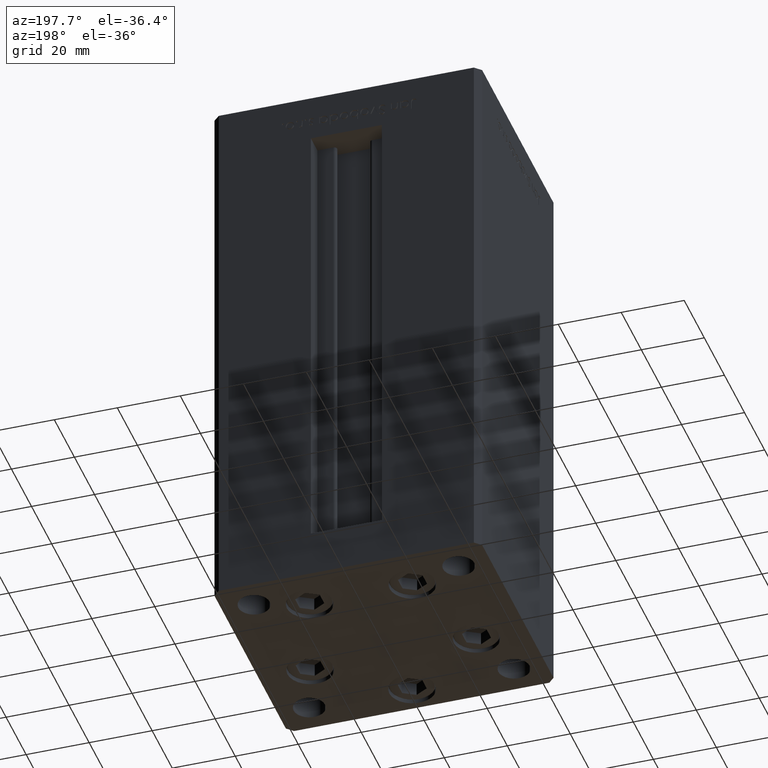
[diagram: clean part render]
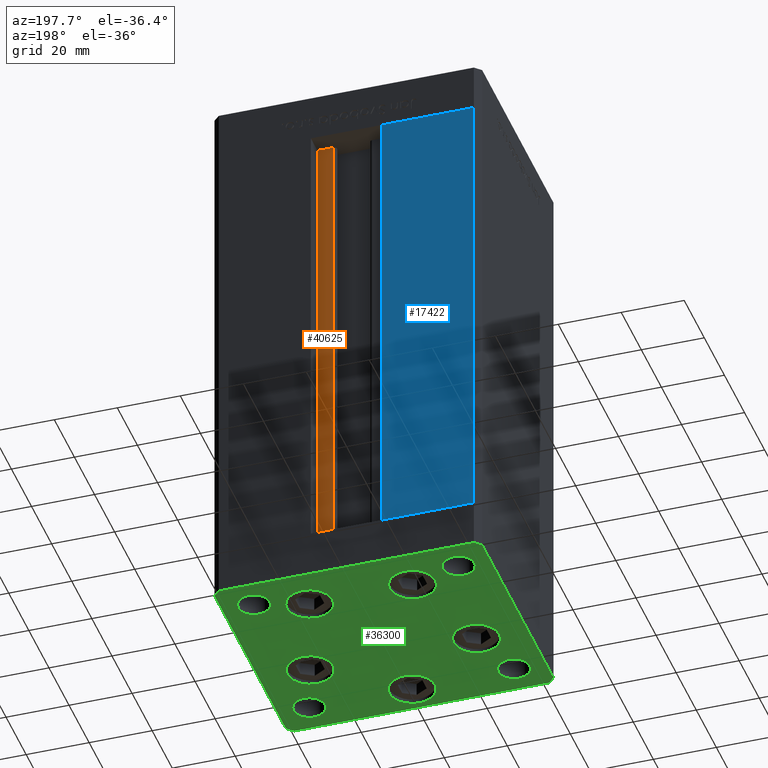
[diagram: same view with three faces highlighted in distinct colors, each labeled with its STEP entity id]
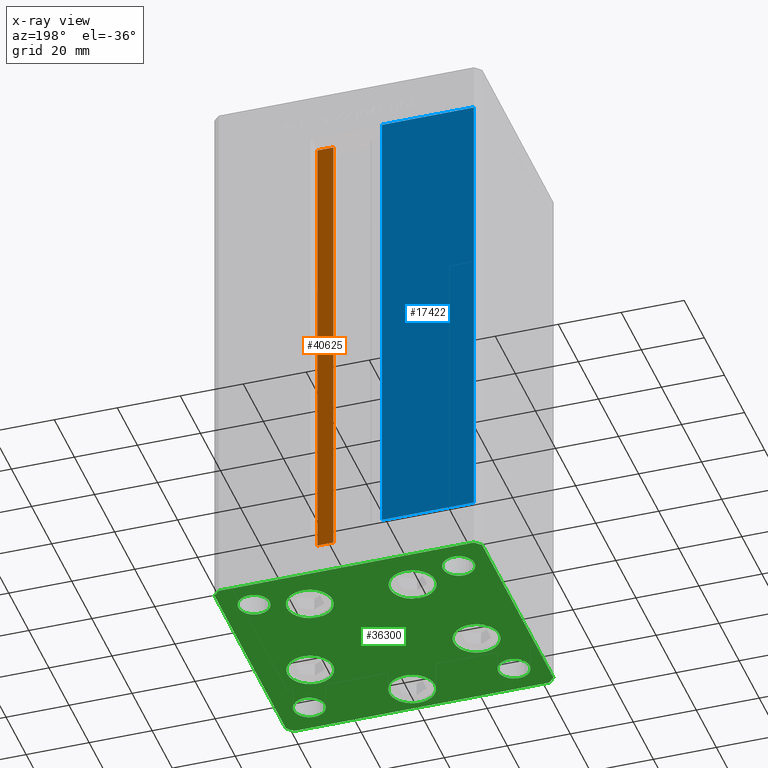
[diagram: x-ray of the same camera — body ghosted, the three highlighted faces saturated]
A machine part, auxiliary view with three faces highlighted in distinct colors.
The next image is the same camera in x-ray (body ghosted, the three faces saturated) — at least one of them is partly hidden behind the body in this view.
Their STEP definitions:

[orange] entity #40625 — the highlighted planar face has unit normal (0, -1, 0).
#2623 = ORIENTED_EDGE ( 'NONE', *, *, #27236, .F. ) ;
#5508 = EDGE_CURVE ( 'NONE', #46828, #31269, #29381, .T. ) ;
#7000 = DIRECTION ( 'NONE',  ( 0.000000000000000000, -0.000000000000000000, -1.000000000000000000 ) ) ;
#8990 = DIRECTION ( 'NONE',  ( -0.000000000000000000, -0.000000000000000000, 1.000000000000000000 ) ) ;
#9032 = DIRECTION ( 'NONE',  ( 1.000000000000000000, 0.000000000000000000, 0.000000000000000000 ) ) ;
#9565 = DIRECTION ( 'NONE',  ( -1.000000000000000000, 0.000000000000000000, 0.000000000000000000 ) ) ;
#9768 = LINE ( 'NONE', #33277, #23782 ) ;
#11499 = FACE_OUTER_BOUND ( 'NONE', #14965, .T. ) ;
#13757 = CARTESIAN_POINT ( 'NONE',  ( 11.25000000000000000, 30.99999999999999289, 148.5000000000000000 ) ) ;
#14965 = EDGE_LOOP ( 'NONE', ( #31788, #2623, #34641, #35741 ) ) ;
#23782 = VECTOR ( 'NONE', #8990, 1000.000000000000000 ) ;
#25157 = LINE ( 'NONE', #28849, #29156 ) ;
#25248 = VECTOR ( 'NONE', #9565, 1000.000000000000000 ) ;
#25430 = CARTESIAN_POINT ( 'NONE',  ( 0.000000000000000000, 30.99999999999999289, 148.5000000000000000 ) ) ;
#27236 = EDGE_CURVE ( 'NONE', #36252, #40249, #25157, .T. ) ;
#27869 = PLANE ( 'NONE',  #42917 ) ;
#28849 = CARTESIAN_POINT ( 'NONE',  ( 6.183333333333999704, 30.99999999999999289, 0.000000000000000000 ) ) ;
#28884 = CARTESIAN_POINT ( 'NONE',  ( 6.183333333333999704, 30.99999999999999289, 0.000000000000000000 ) ) ;
#29156 = VECTOR ( 'NONE', #9032, 1000.000000000000000 ) ;
#29381 = LINE ( 'NONE', #25430, #25248 ) ;
#31269 = VERTEX_POINT ( 'NONE', #32108 ) ;
#31788 = ORIENTED_EDGE ( 'NONE', *, *, #45503, .F. ) ;
#32108 = CARTESIAN_POINT ( 'NONE',  ( 6.183333333333999704, 30.99999999999999289, 148.5000000000000000 ) ) ;
#33277 = CARTESIAN_POINT ( 'NONE',  ( 6.183333333333999704, 30.99999999999999289, 0.000000000000000000 ) ) ;
#34641 = ORIENTED_EDGE ( 'NONE', *, *, #48363, .T. ) ;
#35741 = ORIENTED_EDGE ( 'NONE', *, *, #5508, .F. ) ;
#36252 = VERTEX_POINT ( 'NONE', #28884 ) ;
#37196 = VECTOR ( 'NONE', #39592, 1000.000000000000000 ) ;
#37984 = CARTESIAN_POINT ( 'NONE',  ( 11.25000000000000000, 30.99999999999999289, 0.000000000000000000 ) ) ;
#39592 = DIRECTION ( 'NONE',  ( -0.000000000000000000, -0.000000000000000000, 1.000000000000000000 ) ) ;
#40249 = VERTEX_POINT ( 'NONE', #37984 ) ;
#40625 = ADVANCED_FACE ( 'NONE', ( #11499 ), #27869, .F. ) ;
#42917 = AXIS2_PLACEMENT_3D ( 'NONE', #47905, #43695, #7000 ) ;
#43695 = DIRECTION ( 'NONE',  ( 0.000000000000000000, -1.000000000000000000, 0.000000000000000000 ) ) ;
#44062 = LINE ( 'NONE', #47762, #37196 ) ;
#45503 = EDGE_CURVE ( 'NONE', #40249, #46828, #44062, .T. ) ;
#46828 = VERTEX_POINT ( 'NONE', #13757 ) ;
#47762 = CARTESIAN_POINT ( 'NONE',  ( 11.25000000000000000, 30.99999999999999289, 0.000000000000000000 ) ) ;
#47905 = CARTESIAN_POINT ( 'NONE',  ( 6.183333333333999704, 30.99999999999999289, 0.000000000000000000 ) ) ;
#48363 = EDGE_CURVE ( 'NONE', #36252, #31269, #9768, .T. ) ;

[blue] entity #17422 — the highlighted planar face has unit normal (-0, -1, 0).
#4486 = EDGE_CURVE ( 'NONE', #41974, #15911, #7439, .T. ) ;
#6144 = AXIS2_PLACEMENT_3D ( 'NONE', #17707, #50149, #10036 ) ;
#7439 = LINE ( 'NONE', #36220, #41198 ) ;
#8109 = EDGE_CURVE ( 'NONE', #8798, #30941, #18985, .T. ) ;
#8798 = VERTEX_POINT ( 'NONE', #21537 ) ;
#10036 = DIRECTION ( 'NONE',  ( 1.000000000000000000, -2.372271420139223331E-16, 0.000000000000000000 ) ) ;
#11361 = ORIENTED_EDGE ( 'NONE', *, *, #8109, .F. ) ;
#15240 = LINE ( 'NONE', #19197, #20348 ) ;
#15550 = CARTESIAN_POINT ( 'NONE',  ( -40.50000000000000000, 37.50000000000000711, 0.000000000000000000 ) ) ;
#15911 = VERTEX_POINT ( 'NONE', #33137 ) ;
#17422 = ADVANCED_FACE ( 'NONE', ( #34318 ), #49894, .F. ) ;
#17707 = CARTESIAN_POINT ( 'NONE',  ( -11.25000000000000000, 37.50000000000000000, 148.5000000000000000 ) ) ;
#18985 = LINE ( 'NONE', #31393, #31104 ) ;
#19197 = CARTESIAN_POINT ( 'NONE',  ( -11.25000000000000000, 37.50000000000000000, 148.5000000000000000 ) ) ;
#20348 = VECTOR ( 'NONE', #23168, 1000.000000000000000 ) ;
#21537 = CARTESIAN_POINT ( 'NONE',  ( -40.50000000000000000, 37.50000000000000711, 148.5000000000000000 ) ) ;
#21712 = EDGE_LOOP ( 'NONE', ( #40326, #49367, #45273, #11361 ) ) ;
#23168 = DIRECTION ( 'NONE',  ( 1.000000000000000000, 0.000000000000000000, 0.000000000000000000 ) ) ;
#30316 = VECTOR ( 'NONE', #50832, 1000.000000000000000 ) ;
#30394 = CARTESIAN_POINT ( 'NONE',  ( -11.25000000000000000, 37.50000000000000000, 0.000000000000000000 ) ) ;
#30941 = VERTEX_POINT ( 'NONE', #15550 ) ;
#31104 = VECTOR ( 'NONE', #47990, 1000.000000000000000 ) ;
#31393 = CARTESIAN_POINT ( 'NONE',  ( -40.50000000000000000, 37.50000000000000711, 148.5000000000000000 ) ) ;
#33137 = CARTESIAN_POINT ( 'NONE',  ( -11.25000000000000000, 37.50000000000000000, 148.5000000000000000 ) ) ;
#34318 = FACE_OUTER_BOUND ( 'NONE', #21712, .T. ) ;
#36220 = CARTESIAN_POINT ( 'NONE',  ( -11.25000000000000000, 37.50000000000000000, 0.000000000000000000 ) ) ;
#37933 = CARTESIAN_POINT ( 'NONE',  ( -11.25000000000000000, 37.50000000000000000, 0.000000000000000000 ) ) ;
#39654 = DIRECTION ( 'NONE',  ( -0.000000000000000000, -0.000000000000000000, 1.000000000000000000 ) ) ;
#40326 = ORIENTED_EDGE ( 'NONE', *, *, #47825, .T. ) ;
#41198 = VECTOR ( 'NONE', #39654, 1000.000000000000000 ) ;
#41460 = EDGE_CURVE ( 'NONE', #41974, #30941, #42388, .T. ) ;
#41974 = VERTEX_POINT ( 'NONE', #30394 ) ;
#42388 = LINE ( 'NONE', #37933, #30316 ) ;
#45273 = ORIENTED_EDGE ( 'NONE', *, *, #41460, .T. ) ;
#47825 = EDGE_CURVE ( 'NONE', #8798, #15911, #15240, .T. ) ;
#47990 = DIRECTION ( 'NONE',  ( -0.000000000000000000, -0.000000000000000000, -1.000000000000000000 ) ) ;
#49367 = ORIENTED_EDGE ( 'NONE', *, *, #4486, .F. ) ;
#49894 = PLANE ( 'NONE',  #6144 ) ;
#50149 = DIRECTION ( 'NONE',  ( -2.372271420139223331E-16, -1.000000000000000000, 0.000000000000000000 ) ) ;
#50832 = DIRECTION ( 'NONE',  ( -1.000000000000000000, 2.372271420139223331E-16, 0.000000000000000000 ) ) ;

[green] entity #36300 — the highlighted planar face has unit normal (0, 0, -1).
#449 = CIRCLE ( 'NONE', #18176, 7.249999999999999112 ) ;
#613 = FACE_OUTER_BOUND ( 'NONE', #51688, .T. ) ;
#836 = ORIENTED_EDGE ( 'NONE', *, *, #42911, .T. ) ;
#1201 = DIRECTION ( 'NONE',  ( 1.000000000000000000, 0.000000000000000000, 0.000000000000000000 ) ) ;
#1615 = AXIS2_PLACEMENT_3D ( 'NONE', #39443, #15686, #27574 ) ;
#2293 = DIRECTION ( 'NONE',  ( 1.000000000000000000, 0.000000000000000000, 0.000000000000000000 ) ) ;
#2444 = DIRECTION ( 'NONE',  ( 0.7071067811865463515, -0.7071067811865487940, 0.000000000000000000 ) ) ;
#3268 = ORIENTED_EDGE ( 'NONE', *, *, #40586, .T. ) ;
#3341 = DIRECTION ( 'NONE',  ( 1.000000000000000000, 0.000000000000000000, 0.000000000000000000 ) ) ;
#3418 = AXIS2_PLACEMENT_3D ( 'NONE', #36980, #33521, #21663 ) ;
#3665 = DIRECTION ( 'NONE',  ( -0.7071067811865474617, 0.7071067811865474617, 0.000000000000000000 ) ) ;
#3819 = EDGE_CURVE ( 'NONE', #44669, #13979, #5745, .T. ) ;
#3871 = CARTESIAN_POINT ( 'NONE',  ( 40.49999999999991473, 37.50000000000000711, 0.000000000000000000 ) ) ;
#4286 = CARTESIAN_POINT ( 'NONE',  ( 42.49999999999992895, 35.50000000000000000, 0.000000000000000000 ) ) ;
#4310 = FACE_BOUND ( 'NONE', #31247, .T. ) ;
#4565 = FACE_BOUND ( 'NONE', #10960, .T. ) ;
#4666 = DIRECTION ( 'NONE',  ( 1.000000000000000000, 0.000000000000000000, 0.000000000000000000 ) ) ;
#4901 = DIRECTION ( 'NONE',  ( 0.000000000000000000, -0.000000000000000000, -1.000000000000000000 ) ) ;
#4918 = EDGE_CURVE ( 'NONE', #9167, #33920, #12557, .T. ) ;
#5281 = EDGE_CURVE ( 'NONE', #21970, #13845, #22723, .T. ) ;
#5345 = FACE_BOUND ( 'NONE', #51191, .T. ) ;
#5487 = ORIENTED_EDGE ( 'NONE', *, *, #4918, .T. ) ;
#5563 = CIRCLE ( 'NONE', #35104, 5.000000000000000888 ) ;
#5590 = VERTEX_POINT ( 'NONE', #16386 ) ;
#5745 = CIRCLE ( 'NONE', #44543, 5.000000000000000888 ) ;
#5751 = DIRECTION ( 'NONE',  ( -0.7071067811865463515, -0.7071067811865487940, 0.000000000000000000 ) ) ;
#6245 = VECTOR ( 'NONE', #5751, 1000.000000000000000 ) ;
#6512 = DIRECTION ( 'NONE',  ( 1.000000000000000000, 0.000000000000000000, 0.000000000000000000 ) ) ;
#6550 = CARTESIAN_POINT ( 'NONE',  ( -16.32291334290543006, 22.74999999999999645, 0.000000000000000000 ) ) ;
#7083 = EDGE_CURVE ( 'NONE', #22429, #35690, #24449, .T. ) ;
#7744 = LINE ( 'NONE', #40467, #44253 ) ;
#8026 = EDGE_LOOP ( 'NONE', ( #36902, #23303 ) ) ;
#8264 = CARTESIAN_POINT ( 'NONE',  ( 33.64865316429776954, -9.333333333333328596, 0.000000000000000000 ) ) ;
#8552 = FACE_BOUND ( 'NONE', #34756, .T. ) ;
#8773 = VERTEX_POINT ( 'NONE', #17304 ) ;
#8807 = FACE_BOUND ( 'NONE', #16887, .T. ) ;
#9167 = VERTEX_POINT ( 'NONE', #20300 ) ;
#9221 = CARTESIAN_POINT ( 'NONE',  ( -27.50000000000000000, -27.49999999999999645, 0.000000000000000000 ) ) ;
#10184 = VERTEX_POINT ( 'NONE', #46194 ) ;
#10188 = CIRCLE ( 'NONE', #30437, 5.000000000000000888 ) ;
#10384 = AXIS2_PLACEMENT_3D ( 'NONE', #33422, #4901, #1201 ) ;
#10960 = EDGE_LOOP ( 'NONE', ( #41430, #48917 ) ) ;
#10979 = VECTOR ( 'NONE', #3665, 1000.000000000000114 ) ;
#10996 = CIRCLE ( 'NONE', #46394, 4.999999999999997335 ) ;
#11414 = DIRECTION ( 'NONE',  ( 0.000000000000000000, -0.000000000000000000, -1.000000000000000000 ) ) ;
#12180 = EDGE_CURVE ( 'NONE', #13470, #5590, #28238, .T. ) ;
#12247 = FACE_BOUND ( 'NONE', #51041, .T. ) ;
#12557 = CIRCLE ( 'NONE', #24372, 7.250000000000000000 ) ;
#12875 = VERTEX_POINT ( 'NONE', #19553 ) ;
#12931 = CARTESIAN_POINT ( 'NONE',  ( 9.072913342905424727, 22.75000000000000000, 0.000000000000000000 ) ) ;
#13281 = VERTEX_POINT ( 'NONE', #51570 ) ;
#13470 = VERTEX_POINT ( 'NONE', #4286 ) ;
#13693 = DIRECTION ( 'NONE',  ( 1.000000000000000000, 0.000000000000000000, 0.000000000000000000 ) ) ;
#13721 = CARTESIAN_POINT ( 'NONE',  ( -27.50000000000000000, 27.50000000000000355, 0.000000000000000000 ) ) ;
#13812 = EDGE_CURVE ( 'NONE', #38535, #25671, #27871, .T. ) ;
#13845 = VERTEX_POINT ( 'NONE', #24845 ) ;
#13852 = EDGE_LOOP ( 'NONE', ( #31513, #47741 ) ) ;
#13941 = DIRECTION ( 'NONE',  ( 1.000000000000000000, 0.000000000000000000, 0.000000000000000000 ) ) ;
#13979 = VERTEX_POINT ( 'NONE', #39828 ) ;
#13999 = EDGE_CURVE ( 'NONE', #33450, #39954, #33767, .T. ) ;
#14198 = DIRECTION ( 'NONE',  ( -0.000000000000000000, 0.000000000000000000, 1.000000000000000000 ) ) ;
#14235 = DIRECTION ( 'NONE',  ( 0.000000000000000000, -0.000000000000000000, -1.000000000000000000 ) ) ;
#14499 = CARTESIAN_POINT ( 'NONE',  ( 3.429011037612589276E-15, -28.00000000000000000, 0.000000000000000000 ) ) ;
#14722 = DIRECTION ( 'NONE',  ( 0.000000000000000000, -0.000000000000000000, -1.000000000000000000 ) ) ;
#14786 = CARTESIAN_POINT ( 'NONE',  ( -40.50000000000000711, 37.49999999999997868, 0.000000000000000000 ) ) ;
#14832 = EDGE_CURVE ( 'NONE', #34946, #8773, #25386, .T. ) ;
#15192 = VECTOR ( 'NONE', #39038, 1000.000000000000000 ) ;
#15449 = CIRCLE ( 'NONE', #10384, 7.249999999999999112 ) ;
#15686 = DIRECTION ( 'NONE',  ( 0.000000000000000000, -0.000000000000000000, -1.000000000000000000 ) ) ;
#15786 = DIRECTION ( 'NONE',  ( -1.000000000000000000, -3.426614273534436165E-16, 0.000000000000000000 ) ) ;
#15817 = DIRECTION ( 'NONE',  ( 1.000000000000000000, 0.000000000000000000, 0.000000000000000000 ) ) ;
#16075 = CARTESIAN_POINT ( 'NONE',  ( 27.50000000000000355, -27.49999999999999645, 0.000000000000000000 ) ) ;
#16208 = DIRECTION ( 'NONE',  ( 0.000000000000000000, -0.000000000000000000, -1.000000000000000000 ) ) ;
#16386 = CARTESIAN_POINT ( 'NONE',  ( 40.49999999999991473, 37.50000000000000711, 0.000000000000000000 ) ) ;
#16437 = EDGE_CURVE ( 'NONE', #12875, #30737, #24694, .T. ) ;
#16725 = CARTESIAN_POINT ( 'NONE',  ( 0.000000000000000000, 0.000000000000000000, 0.000000000000000000 ) ) ;
#16887 = EDGE_LOOP ( 'NONE', ( #34353, #28283 ) ) ;
#17304 = CARTESIAN_POINT ( 'NONE',  ( -23.57291334290543006, 22.74999999999999645, 0.000000000000000000 ) ) ;
#17564 = VERTEX_POINT ( 'NONE', #14786 ) ;
#17658 = CARTESIAN_POINT ( 'NONE',  ( 32.50000000000000000, 27.49999999999999645, 0.000000000000000000 ) ) ;
#17732 = CARTESIAN_POINT ( 'NONE',  ( 16.32291334290542295, 22.75000000000000000, 0.000000000000000000 ) ) ;
#17740 = ORIENTED_EDGE ( 'NONE', *, *, #26433, .T. ) ;
#17756 = EDGE_CURVE ( 'NONE', #13845, #21970, #15449, .T. ) ;
#18067 = AXIS2_PLACEMENT_3D ( 'NONE', #17732, #46741, #33570 ) ;
#18176 = AXIS2_PLACEMENT_3D ( 'NONE', #40265, #20220, #43972 ) ;
#18457 = ORIENTED_EDGE ( 'NONE', *, *, #19290, .T. ) ;
#19107 = ORIENTED_EDGE ( 'NONE', *, *, #44889, .T. ) ;
#19290 = EDGE_CURVE ( 'NONE', #22625, #13281, #50494, .T. ) ;
#19553 = CARTESIAN_POINT ( 'NONE',  ( 37.50000000000000000, 27.49999999999999645, 0.000000000000000000 ) ) ;
#20106 = DIRECTION ( 'NONE',  ( 0.000000000000000000, -0.000000000000000000, -1.000000000000000000 ) ) ;
#20220 = DIRECTION ( 'NONE',  ( 0.000000000000000000, -0.000000000000000000, -1.000000000000000000 ) ) ;
#20300 = CARTESIAN_POINT ( 'NONE',  ( -7.249999999999997335, -28.00000000000000000, 0.000000000000000000 ) ) ;
#20452 = FACE_BOUND ( 'NONE', #32027, .T. ) ;
#21497 = PLANE ( 'NONE',  #40235 ) ;
#21498 = VERTEX_POINT ( 'NONE', #32222 ) ;
#21641 = LINE ( 'NONE', #34544, #6245 ) ;
#21663 = DIRECTION ( 'NONE',  ( 1.000000000000000000, 0.000000000000000000, 0.000000000000000000 ) ) ;
#21822 = LINE ( 'NONE', #50824, #26919 ) ;
#21970 = VERTEX_POINT ( 'NONE', #8264 ) ;
#22415 = AXIS2_PLACEMENT_3D ( 'NONE', #45330, #37430, #4666 ) ;
#22429 = VERTEX_POINT ( 'NONE', #16075 ) ;
#22546 = CARTESIAN_POINT ( 'NONE',  ( -42.50000000000000000, -35.50000000000000711, 0.000000000000000000 ) ) ;
#22625 = VERTEX_POINT ( 'NONE', #26342 ) ;
#22694 = DIRECTION ( 'NONE',  ( 0.000000000000000000, -0.000000000000000000, -1.000000000000000000 ) ) ;
#22723 = CIRCLE ( 'NONE', #1615, 7.249999999999999112 ) ;
#22831 = ORIENTED_EDGE ( 'NONE', *, *, #51228, .T. ) ;
#22887 = LINE ( 'NONE', #42925, #52130 ) ;
#23303 = ORIENTED_EDGE ( 'NONE', *, *, #13812, .T. ) ;
#23816 = DIRECTION ( 'NONE',  ( 1.000000000000000000, 0.000000000000000000, 0.000000000000000000 ) ) ;
#23883 = CARTESIAN_POINT ( 'NONE',  ( 32.50000000000000000, -27.49999999999999645, 0.000000000000000000 ) ) ;
#24311 = ORIENTED_EDGE ( 'NONE', *, *, #30983, .T. ) ;
#24372 = AXIS2_PLACEMENT_3D ( 'NONE', #14499, #14235, #31394 ) ;
#24417 = ORIENTED_EDGE ( 'NONE', *, *, #49346, .T. ) ;
#24449 = CIRCLE ( 'NONE', #39620, 4.999999999999997335 ) ;
#24694 = CIRCLE ( 'NONE', #49940, 4.999999999999997335 ) ;
#24845 = CARTESIAN_POINT ( 'NONE',  ( 19.14865316429777309, -9.333333333333330373, 0.000000000000000000 ) ) ;
#24893 = EDGE_CURVE ( 'NONE', #30737, #12875, #35034, .T. ) ;
#24934 = DIRECTION ( 'NONE',  ( -0.000000000000000000, 0.000000000000000000, 1.000000000000000000 ) ) ;
#24950 = CIRCLE ( 'NONE', #18067, 7.249999999999999112 ) ;
#25337 = DIRECTION ( 'NONE',  ( -0.000000000000000000, 0.000000000000000000, 1.000000000000000000 ) ) ;
#25386 = CIRCLE ( 'NONE', #38868, 7.249999999999999112 ) ;
#25671 = VERTEX_POINT ( 'NONE', #9221 ) ;
#26176 = EDGE_CURVE ( 'NONE', #21498, #39407, #24950, .T. ) ;
#26342 = CARTESIAN_POINT ( 'NONE',  ( -42.50000000000000000, -35.50000000000000711, 0.000000000000000000 ) ) ;
#26433 = EDGE_CURVE ( 'NONE', #17564, #10184, #21641, .T. ) ;
#26611 = CARTESIAN_POINT ( 'NONE',  ( -32.50000000000000000, 27.50000000000000355, 0.000000000000000000 ) ) ;
#26919 = VECTOR ( 'NONE', #37927, 1000.000000000000114 ) ;
#27270 = DIRECTION ( 'NONE',  ( 1.000000000000000000, 0.000000000000000000, 0.000000000000000000 ) ) ;
#27574 = DIRECTION ( 'NONE',  ( 1.000000000000000000, 0.000000000000000000, 0.000000000000000000 ) ) ;
#27871 = CIRCLE ( 'NONE', #3418, 5.000000000000000888 ) ;
#27964 = CARTESIAN_POINT ( 'NONE',  ( -26.39865316429776954, -9.333333333333337478, 0.000000000000000000 ) ) ;
#28081 = EDGE_CURVE ( 'NONE', #13281, #41589, #7744, .T. ) ;
#28135 = CARTESIAN_POINT ( 'NONE',  ( 40.50000000000000000, -37.50000000000000711, 0.000000000000000000 ) ) ;
#28175 = ORIENTED_EDGE ( 'NONE', *, *, #26176, .T. ) ;
#28232 = CARTESIAN_POINT ( 'NONE',  ( 37.50000000000000000, -27.49999999999999645, 0.000000000000000000 ) ) ;
#28238 = LINE ( 'NONE', #52239, #10979 ) ;
#28283 = ORIENTED_EDGE ( 'NONE', *, *, #14832, .T. ) ;
#28706 = LINE ( 'NONE', #3871, #44067 ) ;
#29013 = CARTESIAN_POINT ( 'NONE',  ( -32.50000000000000000, -27.49999999999999645, 0.000000000000000000 ) ) ;
#29801 = CARTESIAN_POINT ( 'NONE',  ( -37.50000000000000711, -27.49999999999999645, 0.000000000000000000 ) ) ;
#29978 = EDGE_CURVE ( 'NONE', #8773, #34946, #40111, .T. ) ;
#29980 = AXIS2_PLACEMENT_3D ( 'NONE', #17658, #25337, #13693 ) ;
#30070 = EDGE_CURVE ( 'NONE', #39954, #33450, #449, .T. ) ;
#30288 = DIRECTION ( 'NONE',  ( -0.000000000000000000, 0.000000000000000000, 1.000000000000000000 ) ) ;
#30437 = AXIS2_PLACEMENT_3D ( 'NONE', #29013, #49835, #13941 ) ;
#30613 = DIRECTION ( 'NONE',  ( 1.000000000000000000, 0.000000000000000000, 0.000000000000000000 ) ) ;
#30737 = VERTEX_POINT ( 'NONE', #46430 ) ;
#30983 = EDGE_CURVE ( 'NONE', #39407, #21498, #45150, .T. ) ;
#31092 = CARTESIAN_POINT ( 'NONE',  ( -32.50000000000000000, 27.50000000000000355, 0.000000000000000000 ) ) ;
#31247 = EDGE_LOOP ( 'NONE', ( #5487, #24417 ) ) ;
#31394 = DIRECTION ( 'NONE',  ( 1.000000000000000000, 0.000000000000000000, 0.000000000000000000 ) ) ;
#31513 = ORIENTED_EDGE ( 'NONE', *, *, #3819, .F. ) ;
#31577 = DIRECTION ( 'NONE',  ( 1.000000000000000000, 0.000000000000000000, 0.000000000000000000 ) ) ;
#32027 = EDGE_LOOP ( 'NONE', ( #19107, #48313 ) ) ;
#32211 = EDGE_CURVE ( 'NONE', #13979, #44669, #5563, .T. ) ;
#32222 = CARTESIAN_POINT ( 'NONE',  ( 23.57291334290542295, 22.75000000000000000, 0.000000000000000000 ) ) ;
#33422 = CARTESIAN_POINT ( 'NONE',  ( 26.39865316429776954, -9.333333333333330373, 0.000000000000000000 ) ) ;
#33450 = VERTEX_POINT ( 'NONE', #48166 ) ;
#33521 = DIRECTION ( 'NONE',  ( 0.000000000000000000, -0.000000000000000000, -1.000000000000000000 ) ) ;
#33570 = DIRECTION ( 'NONE',  ( 1.000000000000000000, 0.000000000000000000, 0.000000000000000000 ) ) ;
#33767 = CIRCLE ( 'NONE', #48945, 7.249999999999999112 ) ;
#33920 = VERTEX_POINT ( 'NONE', #49591 ) ;
#34353 = ORIENTED_EDGE ( 'NONE', *, *, #29978, .T. ) ;
#34544 = CARTESIAN_POINT ( 'NONE',  ( -40.50000000000000711, 37.49999999999997868, 0.000000000000000000 ) ) ;
#34756 = EDGE_LOOP ( 'NONE', ( #38596, #39494 ) ) ;
#34758 = VERTEX_POINT ( 'NONE', #45916 ) ;
#34946 = VERTEX_POINT ( 'NONE', #36650 ) ;
#35034 = CIRCLE ( 'NONE', #29980, 4.999999999999997335 ) ;
#35104 = AXIS2_PLACEMENT_3D ( 'NONE', #31092, #14198, #2293 ) ;
#35338 = CARTESIAN_POINT ( 'NONE',  ( -42.50000000000000711, 35.49999999999997158, 0.000000000000000000 ) ) ;
#35690 = VERTEX_POINT ( 'NONE', #28232 ) ;
#36300 = ADVANCED_FACE ( 'NONE', ( #8807, #12247, #8552, #4310, #5345, #4565, #20452, #44961, #613, #45229 ), #21497, .T. ) ;
#36650 = CARTESIAN_POINT ( 'NONE',  ( -9.072913342905431833, 22.74999999999999645, 0.000000000000000000 ) ) ;
#36902 = ORIENTED_EDGE ( 'NONE', *, *, #46393, .T. ) ;
#36980 = CARTESIAN_POINT ( 'NONE',  ( -32.50000000000000000, -27.49999999999999645, 0.000000000000000000 ) ) ;
#37430 = DIRECTION ( 'NONE',  ( 0.000000000000000000, -0.000000000000000000, -1.000000000000000000 ) ) ;
#37927 = DIRECTION ( 'NONE',  ( 0.7071067811865474617, 0.7071067811865474617, 0.000000000000000000 ) ) ;
#38535 = VERTEX_POINT ( 'NONE', #29801 ) ;
#38596 = ORIENTED_EDGE ( 'NONE', *, *, #17756, .T. ) ;
#38868 = AXIS2_PLACEMENT_3D ( 'NONE', #44111, #20106, #23816 ) ;
#38987 = ORIENTED_EDGE ( 'NONE', *, *, #28081, .T. ) ;
#39038 = DIRECTION ( 'NONE',  ( 9.773090005503140331E-17, -1.000000000000000000, 0.000000000000000000 ) ) ;
#39070 = EDGE_CURVE ( 'NONE', #34758, #13470, #22887, .T. ) ;
#39310 = DIRECTION ( 'NONE',  ( -0.000000000000000000, 0.000000000000000000, 1.000000000000000000 ) ) ;
#39335 = CARTESIAN_POINT ( 'NONE',  ( -33.64865316429776954, -9.333333333333337478, 0.000000000000000000 ) ) ;
#39407 = VERTEX_POINT ( 'NONE', #12931 ) ;
#39443 = CARTESIAN_POINT ( 'NONE',  ( 26.39865316429776954, -9.333333333333330373, 0.000000000000000000 ) ) ;
#39494 = ORIENTED_EDGE ( 'NONE', *, *, #5281, .T. ) ;
#39574 = DIRECTION ( 'NONE',  ( 0.000000000000000000, -0.000000000000000000, -1.000000000000000000 ) ) ;
#39620 = AXIS2_PLACEMENT_3D ( 'NONE', #50605, #14722, #3341 ) ;
#39828 = CARTESIAN_POINT ( 'NONE',  ( -37.50000000000000711, 27.50000000000000355, 0.000000000000000000 ) ) ;
#39954 = VERTEX_POINT ( 'NONE', #39335 ) ;
#40111 = CIRCLE ( 'NONE', #42638, 7.249999999999999112 ) ;
#40235 = AXIS2_PLACEMENT_3D ( 'NONE', #16725, #24934, #41012 ) ;
#40265 = CARTESIAN_POINT ( 'NONE',  ( -26.39865316429776954, -9.333333333333337478, 0.000000000000000000 ) ) ;
#40467 = CARTESIAN_POINT ( 'NONE',  ( -40.49999999999999289, -37.50000000000002132, 0.000000000000000000 ) ) ;
#40586 = EDGE_CURVE ( 'NONE', #41589, #34758, #21822, .T. ) ;
#40741 = DIRECTION ( 'NONE',  ( 1.000000000000000000, 0.000000000000000000, 0.000000000000000000 ) ) ;
#40983 = DIRECTION ( 'NONE',  ( 1.000000000000000000, 1.713307136767217096E-16, 0.000000000000000000 ) ) ;
#41012 = DIRECTION ( 'NONE',  ( 1.000000000000000000, 0.000000000000000000, 0.000000000000000000 ) ) ;
#41430 = ORIENTED_EDGE ( 'NONE', *, *, #16437, .F. ) ;
#41589 = VERTEX_POINT ( 'NONE', #28135 ) ;
#42638 = AXIS2_PLACEMENT_3D ( 'NONE', #6550, #22694, #31577 ) ;
#42829 = CARTESIAN_POINT ( 'NONE',  ( 3.429011037612589276E-15, -28.00000000000000000, 0.000000000000000000 ) ) ;
#42911 = EDGE_CURVE ( 'NONE', #10184, #22625, #43251, .T. ) ;
#42925 = CARTESIAN_POINT ( 'NONE',  ( 42.50000000000000711, -35.50000000000000000, 0.000000000000000000 ) ) ;
#43251 = LINE ( 'NONE', #35338, #15192 ) ;
#43972 = DIRECTION ( 'NONE',  ( 1.000000000000000000, 0.000000000000000000, 0.000000000000000000 ) ) ;
#44067 = VECTOR ( 'NONE', #15786, 1000.000000000000000 ) ;
#44111 = CARTESIAN_POINT ( 'NONE',  ( -16.32291334290543006, 22.74999999999999645, 0.000000000000000000 ) ) ;
#44253 = VECTOR ( 'NONE', #40983, 1000.000000000000000 ) ;
#44543 = AXIS2_PLACEMENT_3D ( 'NONE', #26611, #30288, #6512 ) ;
#44669 = VERTEX_POINT ( 'NONE', #13721 ) ;
#44889 = EDGE_CURVE ( 'NONE', #35690, #22429, #10996, .T. ) ;
#44961 = FACE_BOUND ( 'NONE', #13852, .T. ) ;
#44969 = VECTOR ( 'NONE', #2444, 1000.000000000000000 ) ;
#45150 = CIRCLE ( 'NONE', #22415, 7.249999999999999112 ) ;
#45229 = FACE_BOUND ( 'NONE', #8026, .T. ) ;
#45327 = ORIENTED_EDGE ( 'NONE', *, *, #39070, .T. ) ;
#45330 = CARTESIAN_POINT ( 'NONE',  ( 16.32291334290542295, 22.75000000000000000, 0.000000000000000000 ) ) ;
#45916 = CARTESIAN_POINT ( 'NONE',  ( 42.50000000000000711, -35.50000000000000000, 0.000000000000000000 ) ) ;
#46194 = CARTESIAN_POINT ( 'NONE',  ( -42.50000000000000711, 35.49999999999997158, 0.000000000000000000 ) ) ;
#46393 = EDGE_CURVE ( 'NONE', #25671, #38535, #10188, .T. ) ;
#46394 = AXIS2_PLACEMENT_3D ( 'NONE', #23883, #16208, #40741 ) ;
#46430 = CARTESIAN_POINT ( 'NONE',  ( 27.50000000000000355, 27.49999999999999645, 0.000000000000000000 ) ) ;
#46703 = ORIENTED_EDGE ( 'NONE', *, *, #30070, .T. ) ;
#46741 = DIRECTION ( 'NONE',  ( 0.000000000000000000, -0.000000000000000000, -1.000000000000000000 ) ) ;
#47741 = ORIENTED_EDGE ( 'NONE', *, *, #32211, .F. ) ;
#47750 = CARTESIAN_POINT ( 'NONE',  ( 32.50000000000000000, 27.49999999999999645, 0.000000000000000000 ) ) ;
#48166 = CARTESIAN_POINT ( 'NONE',  ( -19.14865316429777309, -9.333333333333335702, 0.000000000000000000 ) ) ;
#48313 = ORIENTED_EDGE ( 'NONE', *, *, #7083, .T. ) ;
#48502 = ORIENTED_EDGE ( 'NONE', *, *, #13999, .T. ) ;
#48644 = ORIENTED_EDGE ( 'NONE', *, *, #12180, .T. ) ;
#48917 = ORIENTED_EDGE ( 'NONE', *, *, #24893, .F. ) ;
#48945 = AXIS2_PLACEMENT_3D ( 'NONE', #27964, #39574, #15817 ) ;
#49080 = AXIS2_PLACEMENT_3D ( 'NONE', #42829, #11414, #27270 ) ;
#49346 = EDGE_CURVE ( 'NONE', #33920, #9167, #51609, .T. ) ;
#49591 = CARTESIAN_POINT ( 'NONE',  ( 7.250000000000003553, -28.00000000000000000, 0.000000000000000000 ) ) ;
#49835 = DIRECTION ( 'NONE',  ( 0.000000000000000000, -0.000000000000000000, -1.000000000000000000 ) ) ;
#49940 = AXIS2_PLACEMENT_3D ( 'NONE', #47750, #39310, #30613 ) ;
#50299 = DIRECTION ( 'NONE',  ( -1.172770800660376741E-15, 1.000000000000000000, 0.000000000000000000 ) ) ;
#50494 = LINE ( 'NONE', #22546, #44969 ) ;
#50605 = CARTESIAN_POINT ( 'NONE',  ( 32.50000000000000000, -27.49999999999999645, 0.000000000000000000 ) ) ;
#50824 = CARTESIAN_POINT ( 'NONE',  ( 40.50000000000000000, -37.50000000000000711, 0.000000000000000000 ) ) ;
#51041 = EDGE_LOOP ( 'NONE', ( #24311, #28175 ) ) ;
#51191 = EDGE_LOOP ( 'NONE', ( #46703, #48502 ) ) ;
#51228 = EDGE_CURVE ( 'NONE', #5590, #17564, #28706, .T. ) ;
#51570 = CARTESIAN_POINT ( 'NONE',  ( -40.49999999999999289, -37.50000000000002132, 0.000000000000000000 ) ) ;
#51609 = CIRCLE ( 'NONE', #49080, 7.250000000000000000 ) ;
#51688 = EDGE_LOOP ( 'NONE', ( #18457, #38987, #3268, #45327, #48644, #22831, #17740, #836 ) ) ;
#52130 = VECTOR ( 'NONE', #50299, 1000.000000000000000 ) ;
#52239 = CARTESIAN_POINT ( 'NONE',  ( 42.49999999999992895, 35.50000000000000000, 0.000000000000000000 ) ) ;